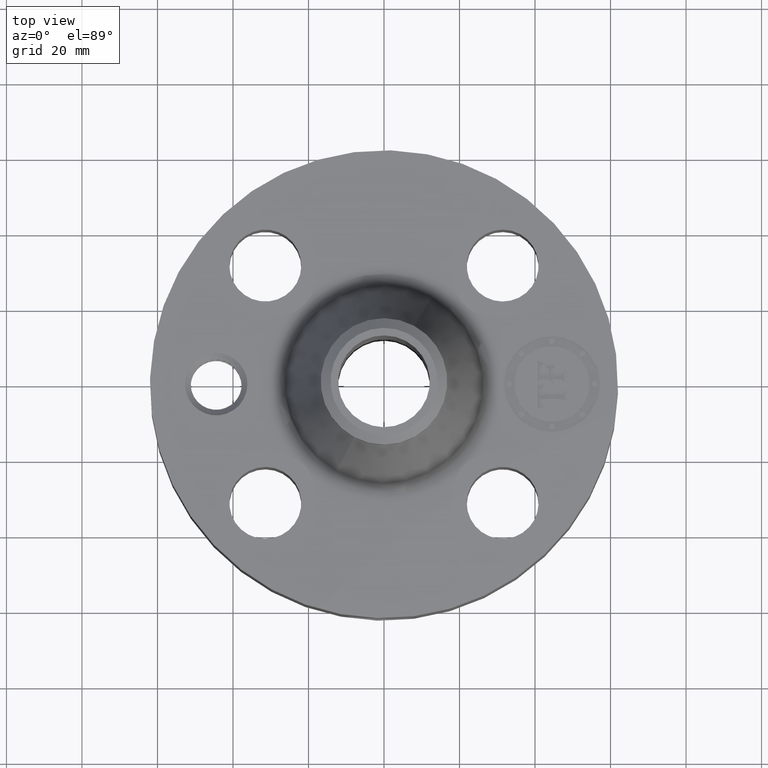
[diagram: clean part render]
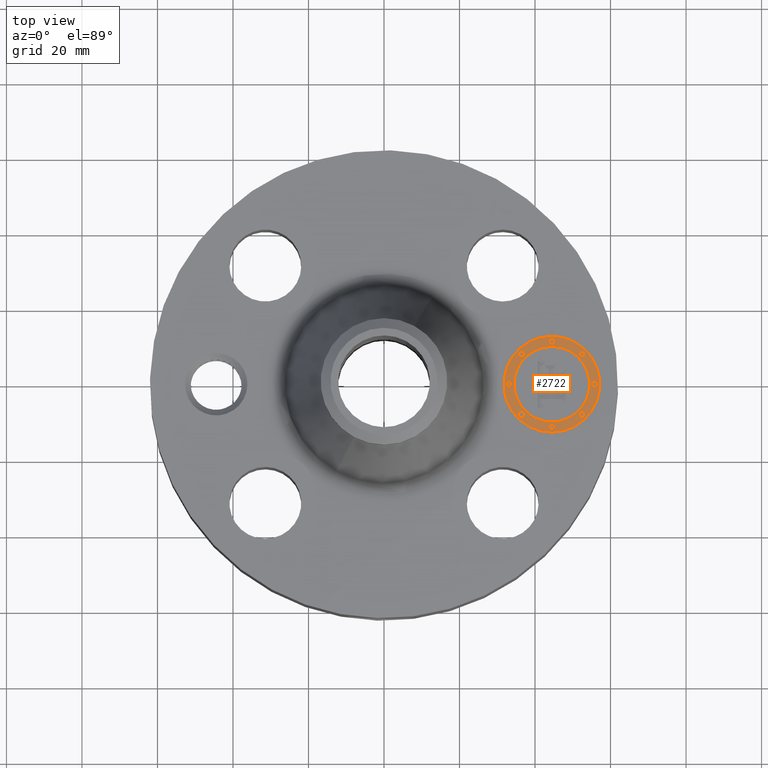
[diagram: same view with one face highlighted and labeled with its STEP entity id]
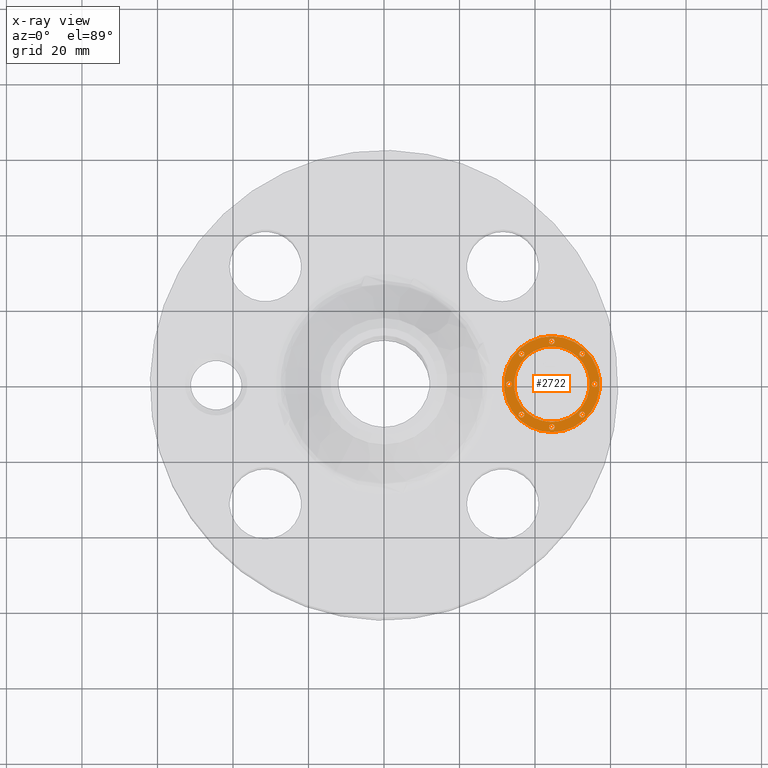
[diagram: x-ray of the same camera — body ghosted, the highlighted face saturated]
A machine part, top view. The second image highlights one B-rep face of the part: STEP entity #2722.
The next image is the same camera in x-ray: the body ghosted, the highlighted face saturated — about 0% of this face is hidden behind the body in this view.
In plain terms, the highlighted planar face has unit normal (0, 0, 1).
Its self-contained STEP definition (entity closure, byte-faithful):
#1892=AXIS2_PLACEMENT_3D('Circle Axis2P3D',#1890,#1891,$) ;
#1919=AXIS2_PLACEMENT_3D('Circle Axis2P3D',#1917,#1918,$) ;
#2554=AXIS2_PLACEMENT_3D('Plane Axis2P3D',#2551,#2552,#2553) ;
#2562=AXIS2_PLACEMENT_3D('Circle Axis2P3D',#2560,#2561,$) ;
#2571=AXIS2_PLACEMENT_3D('Circle Axis2P3D',#2569,#2570,$) ;
#2580=AXIS2_PLACEMENT_3D('Circle Axis2P3D',#2578,#2579,$) ;
#2589=AXIS2_PLACEMENT_3D('Circle Axis2P3D',#2587,#2588,$) ;
#2598=AXIS2_PLACEMENT_3D('Circle Axis2P3D',#2596,#2597,$) ;
#2607=AXIS2_PLACEMENT_3D('Circle Axis2P3D',#2605,#2606,$) ;
#2616=AXIS2_PLACEMENT_3D('Circle Axis2P3D',#2614,#2615,$) ;
#2625=AXIS2_PLACEMENT_3D('Circle Axis2P3D',#2623,#2624,$) ;
#2634=AXIS2_PLACEMENT_3D('Circle Axis2P3D',#2632,#2633,$) ;
#2643=AXIS2_PLACEMENT_3D('Circle Axis2P3D',#2641,#2642,$) ;
#2652=AXIS2_PLACEMENT_3D('Circle Axis2P3D',#2650,#2651,$) ;
#2661=AXIS2_PLACEMENT_3D('Circle Axis2P3D',#2659,#2660,$) ;
#2670=AXIS2_PLACEMENT_3D('Circle Axis2P3D',#2668,#2669,$) ;
#2679=AXIS2_PLACEMENT_3D('Circle Axis2P3D',#2677,#2678,$) ;
#2688=AXIS2_PLACEMENT_3D('Circle Axis2P3D',#2686,#2687,$) ;
#2697=AXIS2_PLACEMENT_3D('Circle Axis2P3D',#2695,#2696,$) ;
#2706=AXIS2_PLACEMENT_3D('Circle Axis2P3D',#2704,#2705,$) ;
#2715=AXIS2_PLACEMENT_3D('Circle Axis2P3D',#2713,#2714,$) ;
#1887=CARTESIAN_POINT('Vertex',(1.75000000001,-0.499999995002,1.73500000001)) ;
#1890=CARTESIAN_POINT('Axis2P3D Location',(1.75000000001,-4.38103225949E-015,1.73500000001)) ;
#1894=CARTESIAN_POINT('Vertex',(1.75000000001,0.499999995002,1.73500000001)) ;
#1917=CARTESIAN_POINT('Axis2P3D Location',(1.75000000001,-4.38103225949E-015,1.73500000001)) ;
#2551=CARTESIAN_POINT('Axis2P3D Location',(0.,0.,1.73500000001)) ;
#2560=CARTESIAN_POINT('Axis2P3D Location',(1.75000000001,-4.38103225949E-015,1.73500000001)) ;
#2564=CARTESIAN_POINT('Vertex',(1.75000000001,-0.393939390002,1.73500000001)) ;
#2566=CARTESIAN_POINT('Vertex',(1.75000000001,0.393939390002,1.73500000001)) ;
#2569=CARTESIAN_POINT('Axis2P3D Location',(1.75000000001,-4.38103225949E-015,1.73500000001)) ;
#2578=CARTESIAN_POINT('Axis2P3D Location',(1.30303030751,-5.65258331292E-015,1.73500000001)) ;
#2582=CARTESIAN_POINT('Vertex',(1.30303030751,-0.0303030300001,1.73500000001)) ;
#2584=CARTESIAN_POINT('Vertex',(1.30303030751,0.0303030300001,1.73500000001)) ;
#2587=CARTESIAN_POINT('Axis2P3D Location',(1.30303030751,-5.65258331292E-015,1.73500000001)) ;
#2596=CARTESIAN_POINT('Axis2P3D Location',(1.75000000001,0.446969692502,1.73500000001)) ;
#2600=CARTESIAN_POINT('Vertex',(1.75000000001,0.416666662502,1.73500000001)) ;
#2602=CARTESIAN_POINT('Vertex',(1.75000000001,0.477272722502,1.73500000001)) ;
#2605=CARTESIAN_POINT('Axis2P3D Location',(1.75000000001,0.446969692502,1.73500000001)) ;
#2614=CARTESIAN_POINT('Axis2P3D Location',(1.43394469945,0.316055300553,1.73500000001)) ;
#2618=CARTESIAN_POINT('Vertex',(1.43394469945,0.285752270553,1.73500000001)) ;
#2620=CARTESIAN_POINT('Vertex',(1.43394469945,0.346358330553,1.73500000001)) ;
#2623=CARTESIAN_POINT('Axis2P3D Location',(1.43394469945,0.316055300553,1.73500000001)) ;
#2632=CARTESIAN_POINT('Axis2P3D Location',(2.19696969251,7.34549412211E-015,1.73500000001)) ;
#2636=CARTESIAN_POINT('Vertex',(2.19696969251,-0.0303030300001,1.73500000001)) ;
#2638=CARTESIAN_POINT('Vertex',(2.19696969251,0.0303030300001,1.73500000001)) ;
#2641=CARTESIAN_POINT('Axis2P3D Location',(2.19696969251,7.34549412211E-015,1.73500000001)) ;
#2650=CARTESIAN_POINT('Axis2P3D Location',(2.06605530056,0.316055300553,1.73500000001)) ;
#2654=CARTESIAN_POINT('Vertex',(2.06605530056,0.285752270553,1.73500000001)) ;
#2656=CARTESIAN_POINT('Vertex',(2.06605530056,0.346358330553,1.73500000001)) ;
#2659=CARTESIAN_POINT('Axis2P3D Location',(2.06605530056,0.316055300553,1.73500000001)) ;
#2668=CARTESIAN_POINT('Axis2P3D Location',(1.75000000001,-0.446969692502,1.73500000001)) ;
#2672=CARTESIAN_POINT('Vertex',(1.75000000001,-0.416666662502,1.73500000001)) ;
#2674=CARTESIAN_POINT('Vertex',(1.75000000001,-0.477272722502,1.73500000001)) ;
#2677=CARTESIAN_POINT('Axis2P3D Location',(1.75000000001,-0.446969692502,1.73500000001)) ;
#2686=CARTESIAN_POINT('Axis2P3D Location',(1.43394469945,-0.316055300553,1.73500000001)) ;
#2690=CARTESIAN_POINT('Vertex',(1.43394469945,-0.285752270553,1.73500000001)) ;
#2692=CARTESIAN_POINT('Vertex',(1.43394469945,-0.346358330553,1.73500000001)) ;
#2695=CARTESIAN_POINT('Axis2P3D Location',(1.43394469945,-0.316055300553,1.73500000001)) ;
#2704=CARTESIAN_POINT('Axis2P3D Location',(2.06605530056,-0.316055300553,1.73500000001)) ;
#2708=CARTESIAN_POINT('Vertex',(2.06605530056,-0.285752270553,1.73500000001)) ;
#2710=CARTESIAN_POINT('Vertex',(2.06605530056,-0.346358330553,1.73500000001)) ;
#2713=CARTESIAN_POINT('Axis2P3D Location',(2.06605530056,-0.316055300553,1.73500000001)) ;
#1891=DIRECTION('Axis2P3D Direction',(0.,0.,0.0393700787402)) ;
#1918=DIRECTION('Axis2P3D Direction',(0.,0.,0.0393700787402)) ;
#2552=DIRECTION('Axis2P3D Direction',(0.,0.,0.0393700787402)) ;
#2553=DIRECTION('Axis2P3D XDirection',(0.0393700787402,0.,0.)) ;
#2561=DIRECTION('Axis2P3D Direction',(0.,0.,0.0393700787402)) ;
#2570=DIRECTION('Axis2P3D Direction',(0.,0.,0.0393700787402)) ;
#2579=DIRECTION('Axis2P3D Direction',(0.,0.,0.0393700787402)) ;
#2588=DIRECTION('Axis2P3D Direction',(0.,0.,0.0393700787402)) ;
#2597=DIRECTION('Axis2P3D Direction',(0.,0.,0.0393700787402)) ;
#2606=DIRECTION('Axis2P3D Direction',(0.,0.,0.0393700787402)) ;
#2615=DIRECTION('Axis2P3D Direction',(0.,0.,0.0393700787402)) ;
#2624=DIRECTION('Axis2P3D Direction',(0.,0.,0.0393700787402)) ;
#2633=DIRECTION('Axis2P3D Direction',(0.,0.,0.0393700787402)) ;
#2642=DIRECTION('Axis2P3D Direction',(0.,0.,0.0393700787402)) ;
#2651=DIRECTION('Axis2P3D Direction',(0.,0.,0.0393700787402)) ;
#2660=DIRECTION('Axis2P3D Direction',(0.,0.,0.0393700787402)) ;
#2669=DIRECTION('Axis2P3D Direction',(0.,0.,0.0393700787402)) ;
#2678=DIRECTION('Axis2P3D Direction',(0.,0.,0.0393700787402)) ;
#2687=DIRECTION('Axis2P3D Direction',(0.,0.,0.0393700787402)) ;
#2696=DIRECTION('Axis2P3D Direction',(0.,0.,0.0393700787402)) ;
#2705=DIRECTION('Axis2P3D Direction',(0.,0.,0.0393700787402)) ;
#2714=DIRECTION('Axis2P3D Direction',(0.,0.,0.0393700787402)) ;
#2557=ORIENTED_EDGE('',*,*,#1896,.T.) ;
#2558=ORIENTED_EDGE('',*,*,#1921,.T.) ;
#2575=ORIENTED_EDGE('',*,*,#2568,.F.) ;
#2576=ORIENTED_EDGE('',*,*,#2573,.F.) ;
#2593=ORIENTED_EDGE('',*,*,#2586,.F.) ;
#2594=ORIENTED_EDGE('',*,*,#2591,.F.) ;
#2611=ORIENTED_EDGE('',*,*,#2604,.F.) ;
#2612=ORIENTED_EDGE('',*,*,#2609,.F.) ;
#2629=ORIENTED_EDGE('',*,*,#2622,.F.) ;
#2630=ORIENTED_EDGE('',*,*,#2627,.F.) ;
#2647=ORIENTED_EDGE('',*,*,#2640,.F.) ;
#2648=ORIENTED_EDGE('',*,*,#2645,.F.) ;
#2665=ORIENTED_EDGE('',*,*,#2658,.F.) ;
#2666=ORIENTED_EDGE('',*,*,#2663,.F.) ;
#2683=ORIENTED_EDGE('',*,*,#2676,.F.) ;
#2684=ORIENTED_EDGE('',*,*,#2681,.F.) ;
#2701=ORIENTED_EDGE('',*,*,#2694,.F.) ;
#2702=ORIENTED_EDGE('',*,*,#2699,.F.) ;
#2719=ORIENTED_EDGE('',*,*,#2712,.F.) ;
#2720=ORIENTED_EDGE('',*,*,#2717,.F.) ;
#2577=FACE_BOUND('',#2574,.T.) ;
#2595=FACE_BOUND('',#2592,.T.) ;
#2613=FACE_BOUND('',#2610,.T.) ;
#2631=FACE_BOUND('',#2628,.T.) ;
#2649=FACE_BOUND('',#2646,.T.) ;
#2667=FACE_BOUND('',#2664,.T.) ;
#2685=FACE_BOUND('',#2682,.T.) ;
#2703=FACE_BOUND('',#2700,.T.) ;
#2721=FACE_BOUND('',#2718,.T.) ;
#2722=ADVANCED_FACE('PartBody',(#2559,#2577,#2595,#2613,#2631,#2649,#2667,#2685,#2703,#2721),#2555,.T.) ;
#1893=CIRCLE('generated circle',#1892,0.499999995002) ;
#1920=CIRCLE('generated circle',#1919,0.499999995002) ;
#2563=CIRCLE('generated circle',#2562,0.393939390002) ;
#2572=CIRCLE('generated circle',#2571,0.393939390002) ;
#2581=CIRCLE('generated circle',#2580,0.0303030300001) ;
#2590=CIRCLE('generated circle',#2589,0.0303030300001) ;
#2599=CIRCLE('generated circle',#2598,0.0303030300001) ;
#2608=CIRCLE('generated circle',#2607,0.0303030300001) ;
#2617=CIRCLE('generated circle',#2616,0.0303030300001) ;
#2626=CIRCLE('generated circle',#2625,0.0303030300001) ;
#2635=CIRCLE('generated circle',#2634,0.0303030300001) ;
#2644=CIRCLE('generated circle',#2643,0.0303030300001) ;
#2653=CIRCLE('generated circle',#2652,0.0303030300001) ;
#2662=CIRCLE('generated circle',#2661,0.0303030300001) ;
#2671=CIRCLE('generated circle',#2670,0.0303030300001) ;
#2680=CIRCLE('generated circle',#2679,0.0303030300001) ;
#2689=CIRCLE('generated circle',#2688,0.0303030300001) ;
#2698=CIRCLE('generated circle',#2697,0.0303030300001) ;
#2707=CIRCLE('generated circle',#2706,0.0303030300001) ;
#2716=CIRCLE('generated circle',#2715,0.0303030300001) ;
#1896=EDGE_CURVE('',#1895,#1888,#1893,.T.) ;
#1921=EDGE_CURVE('',#1888,#1895,#1920,.T.) ;
#2568=EDGE_CURVE('',#2565,#2567,#2563,.T.) ;
#2573=EDGE_CURVE('',#2567,#2565,#2572,.T.) ;
#2586=EDGE_CURVE('',#2583,#2585,#2581,.T.) ;
#2591=EDGE_CURVE('',#2585,#2583,#2590,.T.) ;
#2604=EDGE_CURVE('',#2601,#2603,#2599,.T.) ;
#2609=EDGE_CURVE('',#2603,#2601,#2608,.T.) ;
#2622=EDGE_CURVE('',#2619,#2621,#2617,.T.) ;
#2627=EDGE_CURVE('',#2621,#2619,#2626,.T.) ;
#2640=EDGE_CURVE('',#2637,#2639,#2635,.T.) ;
#2645=EDGE_CURVE('',#2639,#2637,#2644,.T.) ;
#2658=EDGE_CURVE('',#2655,#2657,#2653,.T.) ;
#2663=EDGE_CURVE('',#2657,#2655,#2662,.T.) ;
#2676=EDGE_CURVE('',#2673,#2675,#2671,.T.) ;
#2681=EDGE_CURVE('',#2675,#2673,#2680,.T.) ;
#2694=EDGE_CURVE('',#2691,#2693,#2689,.T.) ;
#2699=EDGE_CURVE('',#2693,#2691,#2698,.T.) ;
#2712=EDGE_CURVE('',#2709,#2711,#2707,.T.) ;
#2717=EDGE_CURVE('',#2711,#2709,#2716,.T.) ;
#2556=EDGE_LOOP('',(#2557,#2558)) ;
#2574=EDGE_LOOP('',(#2575,#2576)) ;
#2592=EDGE_LOOP('',(#2593,#2594)) ;
#2610=EDGE_LOOP('',(#2611,#2612)) ;
#2628=EDGE_LOOP('',(#2629,#2630)) ;
#2646=EDGE_LOOP('',(#2647,#2648)) ;
#2664=EDGE_LOOP('',(#2665,#2666)) ;
#2682=EDGE_LOOP('',(#2683,#2684)) ;
#2700=EDGE_LOOP('',(#2701,#2702)) ;
#2718=EDGE_LOOP('',(#2719,#2720)) ;
#2559=FACE_OUTER_BOUND('',#2556,.T.) ;
#2555=PLANE('',#2554) ;
#1888=VERTEX_POINT('',#1887) ;
#1895=VERTEX_POINT('',#1894) ;
#2565=VERTEX_POINT('',#2564) ;
#2567=VERTEX_POINT('',#2566) ;
#2583=VERTEX_POINT('',#2582) ;
#2585=VERTEX_POINT('',#2584) ;
#2601=VERTEX_POINT('',#2600) ;
#2603=VERTEX_POINT('',#2602) ;
#2619=VERTEX_POINT('',#2618) ;
#2621=VERTEX_POINT('',#2620) ;
#2637=VERTEX_POINT('',#2636) ;
#2639=VERTEX_POINT('',#2638) ;
#2655=VERTEX_POINT('',#2654) ;
#2657=VERTEX_POINT('',#2656) ;
#2673=VERTEX_POINT('',#2672) ;
#2675=VERTEX_POINT('',#2674) ;
#2691=VERTEX_POINT('',#2690) ;
#2693=VERTEX_POINT('',#2692) ;
#2709=VERTEX_POINT('',#2708) ;
#2711=VERTEX_POINT('',#2710) ;